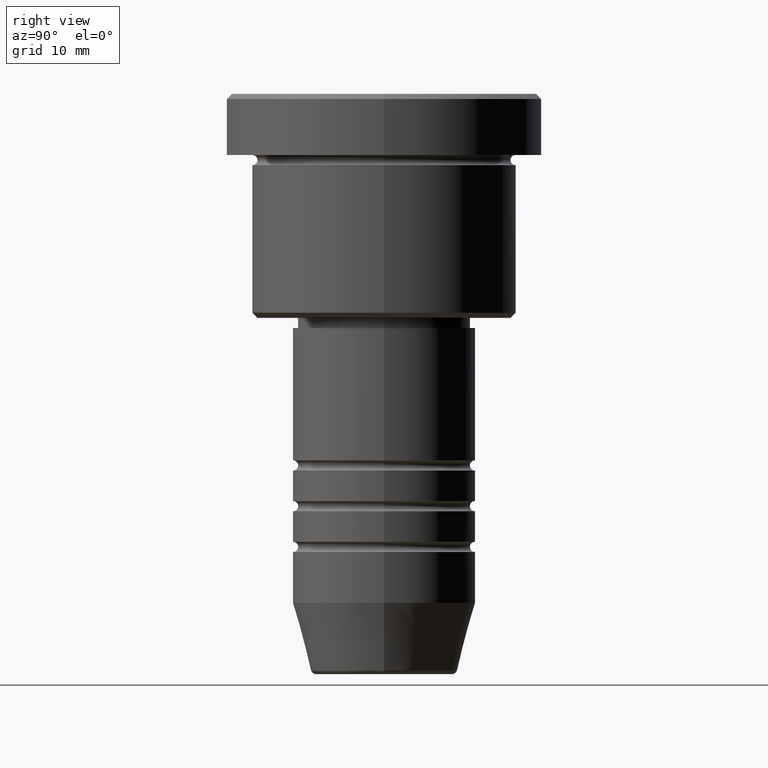
[diagram: clean part render]
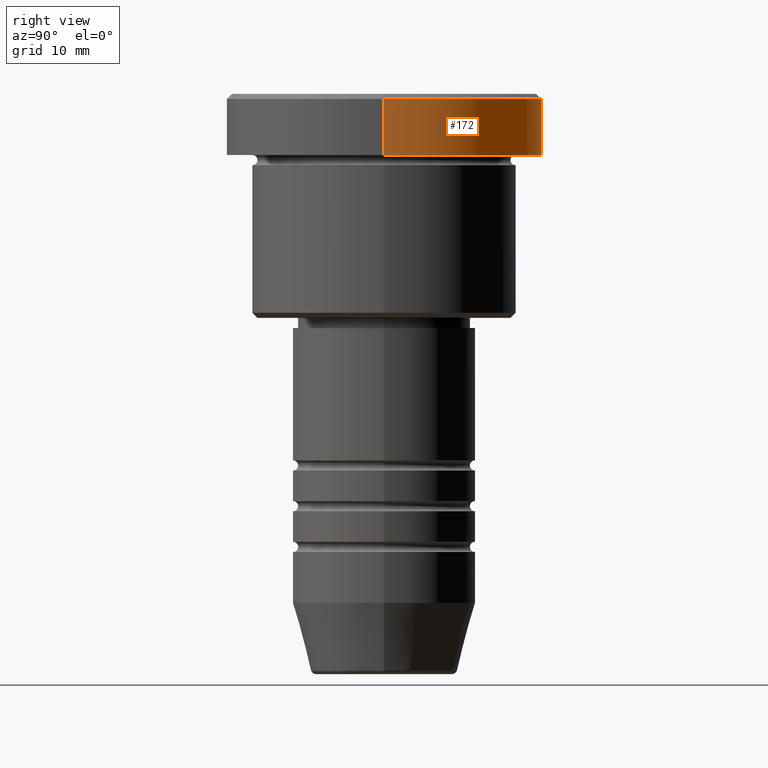
[diagram: same view with one face highlighted and labeled with its STEP entity id]
A machine part, right view. The second image highlights one B-rep face of the part: STEP entity #172.
In plain terms, the highlighted cylindrical surface (partial cylindrical patch) has radius 15.5 mm, axis along (-0, -0, 1).
Its self-contained STEP definition (entity closure, byte-faithful):
#25 = DIRECTION ( 'NONE',  ( -0.000000000000000000, -0.000000000000000000, 1.000000000000000000 ) ) ;
#34 = CARTESIAN_POINT ( 'NONE',  ( -15.50000000000000000, 1.898202538678397557E-15, -0.4999999999999780176 ) ) ;
#75 = DIRECTION ( 'NONE',  ( 1.000000000000000000, 0.000000000000000000, 0.000000000000000000 ) ) ;
#122 = FACE_OUTER_BOUND ( 'NONE', #655, .T. ) ;
#124 = DIRECTION ( 'NONE',  ( -0.000000000000000000, -0.000000000000000000, 1.000000000000000000 ) ) ;
#155 = VERTEX_POINT ( 'NONE', #329 ) ;
#166 = ORIENTED_EDGE ( 'NONE', *, *, #906, .T. ) ;
#172 = ADVANCED_FACE ( 'NONE', ( #122 ), #215, .T. ) ;
#193 = ORIENTED_EDGE ( 'NONE', *, *, #414, .T. ) ;
#215 = CYLINDRICAL_SURFACE ( 'NONE', #350, 15.50000000000000000 ) ;
#221 = DIRECTION ( 'NONE',  ( 1.000000000000000000, 0.000000000000000000, 0.000000000000000000 ) ) ;
#255 = AXIS2_PLACEMENT_3D ( 'NONE', #934, #748, #1108 ) ;
#263 = VERTEX_POINT ( 'NONE', #34 ) ;
#276 = DIRECTION ( 'NONE',  ( -0.000000000000000000, -0.000000000000000000, 1.000000000000000000 ) ) ;
#329 = CARTESIAN_POINT ( 'NONE',  ( 15.50000000000000000, 0.000000000000000000, -0.4999999999999780176 ) ) ;
#350 = AXIS2_PLACEMENT_3D ( 'NONE', #1123, #25, #221 ) ;
#351 = VECTOR ( 'NONE', #124, 1000.000000000000000 ) ;
#394 = CARTESIAN_POINT ( 'NONE',  ( 15.50000000000000000, 0.000000000000000000, 0.000000000000000000 ) ) ;
#414 = EDGE_CURVE ( 'NONE', #263, #155, #1000, .T. ) ;
#469 = AXIS2_PLACEMENT_3D ( 'NONE', #720, #976, #75 ) ;
#482 = CARTESIAN_POINT ( 'NONE',  ( 15.50000000000000000, 0.000000000000000000, -5.999999999999995559 ) ) ;
#506 = VERTEX_POINT ( 'NONE', #1016 ) ;
#509 = ORIENTED_EDGE ( 'NONE', *, *, #663, .F. ) ;
#521 = CIRCLE ( 'NONE', #255, 15.50000000000000000 ) ;
#655 = EDGE_LOOP ( 'NONE', ( #1174, #166, #193, #509 ) ) ;
#663 = EDGE_CURVE ( 'NONE', #704, #155, #667, .T. ) ;
#667 = LINE ( 'NONE', #394, #351 ) ;
#704 = VERTEX_POINT ( 'NONE', #482 ) ;
#718 = LINE ( 'NONE', #1083, #1104 ) ;
#720 = CARTESIAN_POINT ( 'NONE',  ( 0.000000000000000000, 0.000000000000000000, -0.4999999999999780176 ) ) ;
#748 = DIRECTION ( 'NONE',  ( -0.000000000000000000, -0.000000000000000000, 1.000000000000000000 ) ) ;
#906 = EDGE_CURVE ( 'NONE', #506, #263, #718, .T. ) ;
#934 = CARTESIAN_POINT ( 'NONE',  ( 0.000000000000000000, 0.000000000000000000, -5.999999999999995559 ) ) ;
#976 = DIRECTION ( 'NONE',  ( 0.000000000000000000, 0.000000000000000000, -1.000000000000000000 ) ) ;
#1000 = CIRCLE ( 'NONE', #469, 15.50000000000000000 ) ;
#1011 = EDGE_CURVE ( 'NONE', #704, #506, #521, .T. ) ;
#1016 = CARTESIAN_POINT ( 'NONE',  ( -15.50000000000000000, 1.898202538678397557E-15, -5.999999999999995559 ) ) ;
#1083 = CARTESIAN_POINT ( 'NONE',  ( -15.50000000000000000, 1.898202538678397557E-15, 0.000000000000000000 ) ) ;
#1104 = VECTOR ( 'NONE', #276, 1000.000000000000000 ) ;
#1108 = DIRECTION ( 'NONE',  ( 1.000000000000000000, 0.000000000000000000, 0.000000000000000000 ) ) ;
#1123 = CARTESIAN_POINT ( 'NONE',  ( 0.000000000000000000, 0.000000000000000000, 0.000000000000000000 ) ) ;
#1174 = ORIENTED_EDGE ( 'NONE', *, *, #1011, .T. ) ;